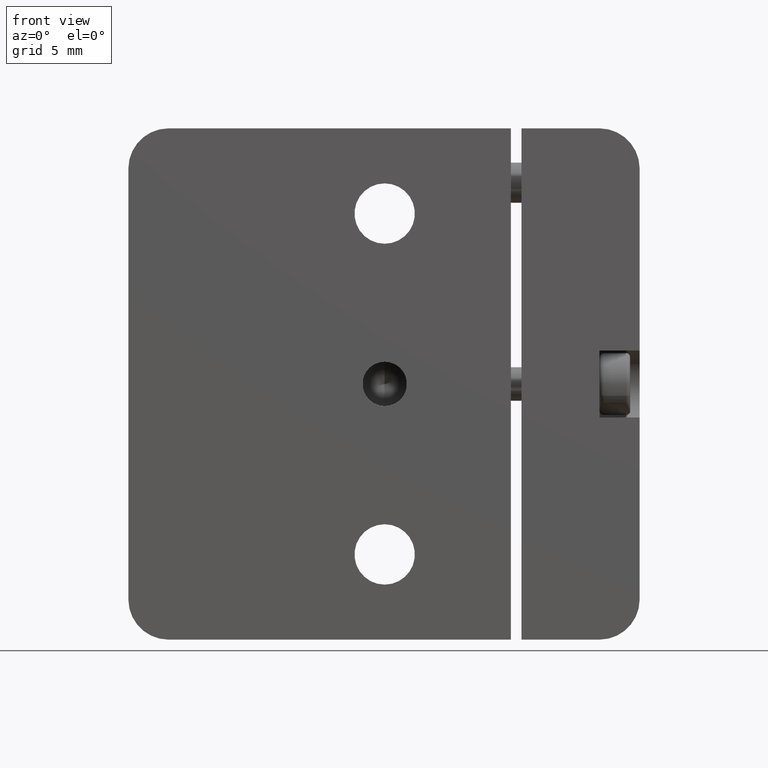
[diagram: clean part render]
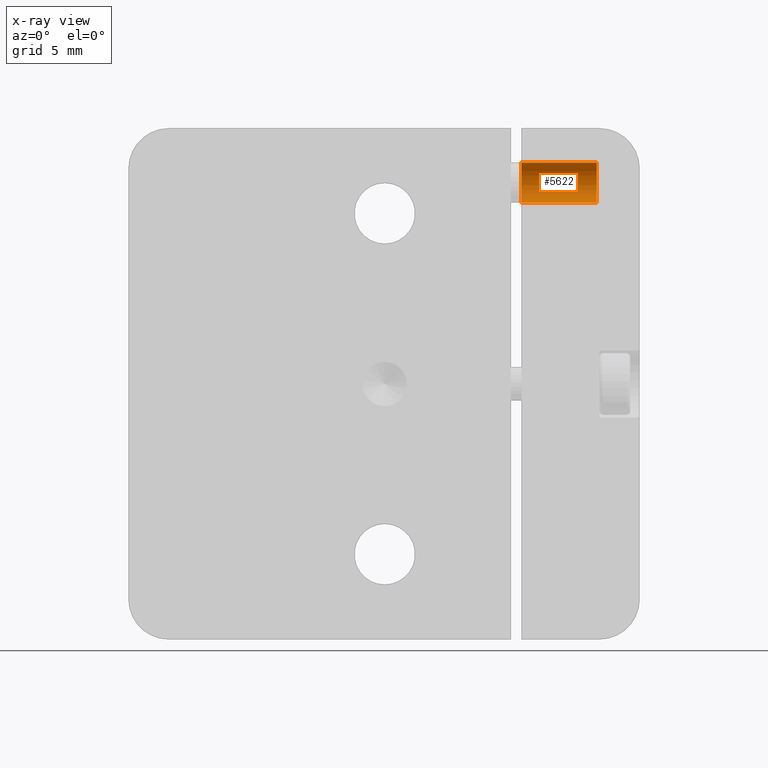
[diagram: x-ray — body ghosted, one internal face saturated and labeled with its STEP entity id]
A machine part, front view, then the same camera in x-ray: the body is ghosted and one INTERNAL B-rep face — a face not visible from any outside direction — is saturated and labeled: STEP entity #5622.
In plain terms, the highlighted cylindrical surface (edge-blend (fillet) strip) has radius 1.5 mm, axis along (-1, 0, 0).
Its self-contained STEP definition (entity closure, byte-faithful):
#7 = VERTEX_POINT ( 'NONE', #2044 ) ;
#8 = CARTESIAN_POINT ( 'NONE',  ( 15.85000000000000320, -0.9465000000000020064, 14.99999999999999822 ) ) ;
#441 = DIRECTION ( 'NONE',  ( -1.000000000000000000, 0.000000000000000000, 1.365923996832131363E-16 ) ) ;
#679 = VERTEX_POINT ( 'NONE', #6395 ) ;
#860 = CYLINDRICAL_SURFACE ( 'NONE', #4567, 1.500000000000003109 ) ;
#880 = CARTESIAN_POINT ( 'NONE',  ( 12.85000000000000320, -0.9465000000000017844, 13.49999999999999467 ) ) ;
#997 = CARTESIAN_POINT ( 'NONE',  ( 10.25000000000000355, -0.9465000000000020064, 14.99999999999999822 ) ) ;
#1321 = CARTESIAN_POINT ( 'NONE',  ( 12.85000000000000320, -0.9465000000000020064, 14.99999999999999822 ) ) ;
#1478 = AXIS2_PLACEMENT_3D ( 'NONE', #8, #441, #2045 ) ;
#1571 = VECTOR ( 'NONE', #6477, 1000.000000000000000 ) ;
#1599 = ORIENTED_EDGE ( 'NONE', *, *, #3006, .F. ) ;
#2028 = CARTESIAN_POINT ( 'NONE',  ( 15.85000000000000320, -0.9465000000000020064, 16.50000000000000000 ) ) ;
#2044 = CARTESIAN_POINT ( 'NONE',  ( 15.85000000000000320, -0.9465000000000017844, 13.49999999999999467 ) ) ;
#2045 = DIRECTION ( 'NONE',  ( 0.000000000000000000, 0.000000000000000000, -1.000000000000000000 ) ) ;
#2496 = LINE ( 'NONE', #6513, #1571 ) ;
#2607 = VERTEX_POINT ( 'NONE', #2028 ) ;
#2887 = DIRECTION ( 'NONE',  ( -1.000000000000000000, -0.000000000000000000, 1.365923996832131363E-16 ) ) ;
#3006 = EDGE_CURVE ( 'NONE', #7, #679, #3459, .T. ) ;
#3070 = CIRCLE ( 'NONE', #1478, 1.500000000000003109 ) ;
#3407 = FACE_OUTER_BOUND ( 'NONE', #5022, .T. ) ;
#3459 = LINE ( 'NONE', #880, #4911 ) ;
#3481 = DIRECTION ( 'NONE',  ( -1.000000000000000000, 0.000000000000000000, 1.365923996832131363E-16 ) ) ;
#3990 = EDGE_CURVE ( 'NONE', #2607, #7, #3070, .T. ) ;
#4146 = CARTESIAN_POINT ( 'NONE',  ( 10.25000000000000355, -0.9465000000000020064, 16.50000000000000000 ) ) ;
#4497 = AXIS2_PLACEMENT_3D ( 'NONE', #997, #3481, #6518 ) ;
#4567 = AXIS2_PLACEMENT_3D ( 'NONE', #1321, #2887, #4902 ) ;
#4902 = DIRECTION ( 'NONE',  ( 0.000000000000000000, 0.000000000000000000, 1.000000000000000000 ) ) ;
#4911 = VECTOR ( 'NONE', #5463, 1000.000000000000000 ) ;
#4915 = EDGE_CURVE ( 'NONE', #5952, #679, #5348, .T. ) ;
#4952 = ORIENTED_EDGE ( 'NONE', *, *, #4915, .T. ) ;
#5022 = EDGE_LOOP ( 'NONE', ( #1599, #5352, #5139, #4952 ) ) ;
#5139 = ORIENTED_EDGE ( 'NONE', *, *, #5269, .T. ) ;
#5269 = EDGE_CURVE ( 'NONE', #2607, #5952, #2496, .T. ) ;
#5348 = CIRCLE ( 'NONE', #4497, 1.500000000000003109 ) ;
#5352 = ORIENTED_EDGE ( 'NONE', *, *, #3990, .F. ) ;
#5463 = DIRECTION ( 'NONE',  ( -1.000000000000000000, -0.000000000000000000, 1.365923996832131116E-16 ) ) ;
#5622 = ADVANCED_FACE ( 'NONE', ( #3407 ), #860, .F. ) ;
#5952 = VERTEX_POINT ( 'NONE', #4146 ) ;
#6395 = CARTESIAN_POINT ( 'NONE',  ( 10.25000000000000355, -0.9465000000000017844, 13.49999999999999467 ) ) ;
#6477 = DIRECTION ( 'NONE',  ( -1.000000000000000000, -0.000000000000000000, 1.365923996832131116E-16 ) ) ;
#6513 = CARTESIAN_POINT ( 'NONE',  ( 12.85000000000000320, -0.9465000000000020064, 16.50000000000000000 ) ) ;
#6518 = DIRECTION ( 'NONE',  ( 0.000000000000000000, 0.000000000000000000, -1.000000000000000000 ) ) ;